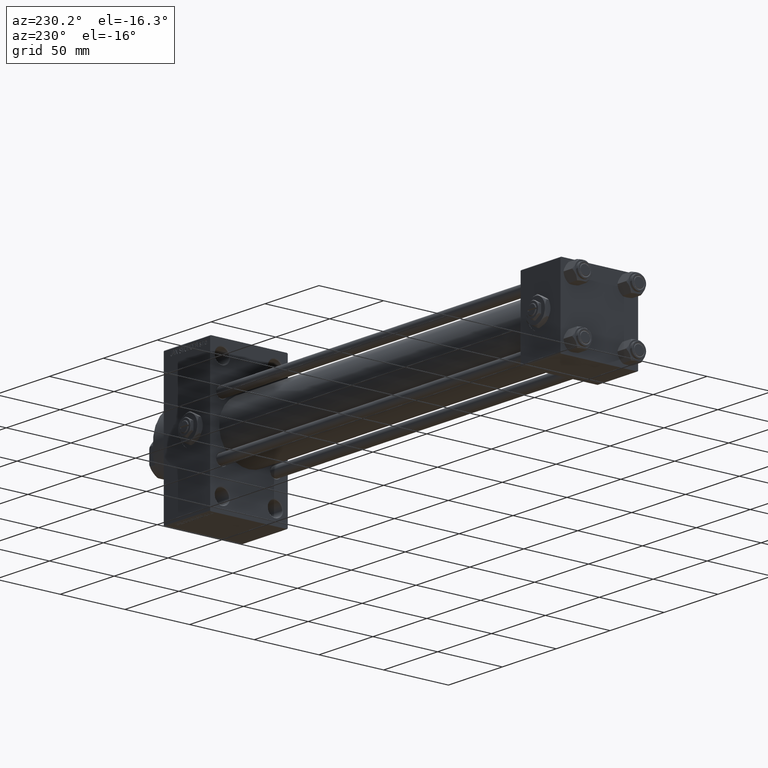
[diagram: clean part render]
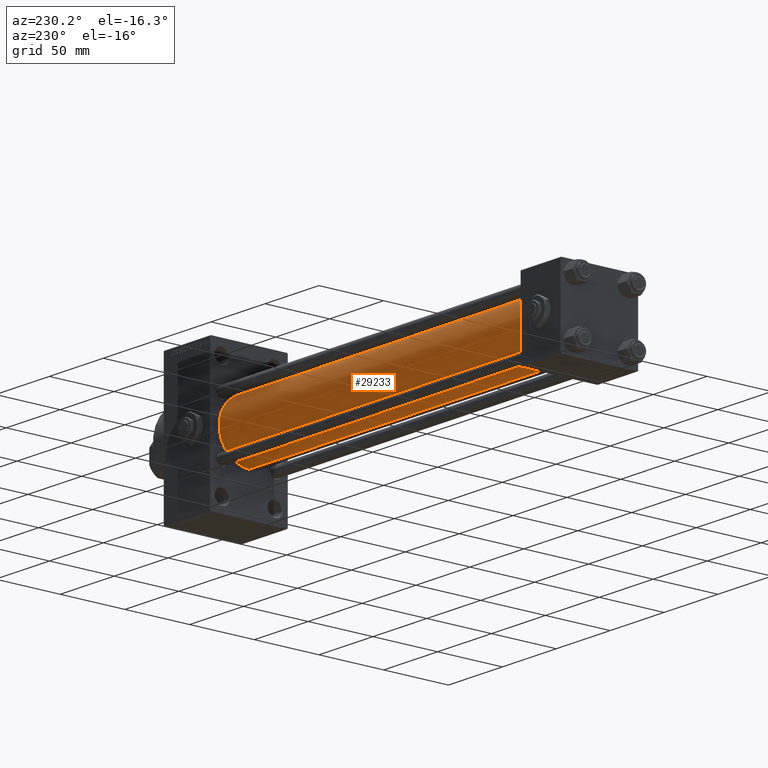
[diagram: same view with one face highlighted and labeled with its STEP entity id]
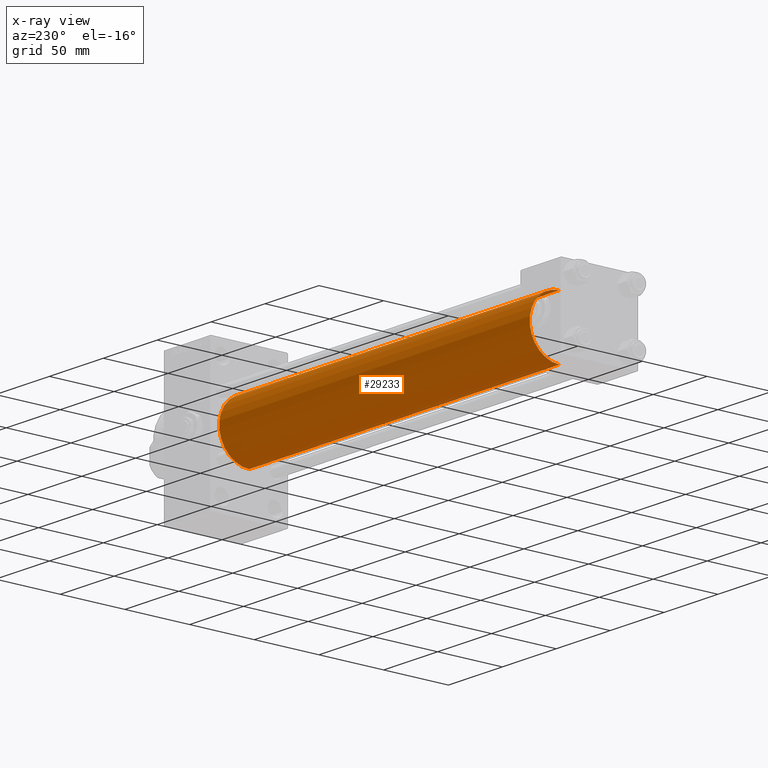
[diagram: x-ray of the same camera — body ghosted, the highlighted face saturated]
A machine part, auxiliary view. The second image highlights one B-rep face of the part: STEP entity #29233.
The next image is the same camera in x-ray: the body ghosted, the highlighted face saturated — about 0% of this face is hidden behind the body in this view.
In plain terms, the highlighted cylindrical surface (partial cylindrical patch) has radius 23 mm, axis along (-1, -0, -0).
Its self-contained STEP definition (entity closure, byte-faithful):
#2254 = DIRECTION ( 'NONE',  ( 1.000000000000000000, -0.000000000000000000, 0.000000000000000000 ) ) ;
#2551 = DIRECTION ( 'NONE',  ( 0.000000000000000000, 0.000000000000000000, 1.000000000000000000 ) ) ;
#3525 = CARTESIAN_POINT ( 'NONE',  ( 324.9999999999999432, -2.602085213965210642E-15, 0.000000000000000000 ) ) ;
#5662 = VECTOR ( 'NONE', #38334, 1000.000000000000000 ) ;
#7294 = DIRECTION ( 'NONE',  ( -1.000000000000000000, -0.000000000000000000, -0.000000000000000000 ) ) ;
#7400 = VERTEX_POINT ( 'NONE', #24897 ) ;
#8040 = CARTESIAN_POINT ( 'NONE',  ( 324.9999999999999432, -2.602085213965210642E-15, 0.000000000000000000 ) ) ;
#8779 = DIRECTION ( 'NONE',  ( 1.000000000000000000, 0.000000000000000000, 0.000000000000000000 ) ) ;
#9206 = VERTEX_POINT ( 'NONE', #46667 ) ;
#10222 = EDGE_CURVE ( 'NONE', #7400, #9206, #31038, .T. ) ;
#10761 = AXIS2_PLACEMENT_3D ( 'NONE', #8040, #8779, #16051 ) ;
#11295 = FACE_OUTER_BOUND ( 'NONE', #49630, .T. ) ;
#12385 = AXIS2_PLACEMENT_3D ( 'NONE', #3525, #7294, #2551 ) ;
#16042 = VECTOR ( 'NONE', #31309, 1000.000000000000000 ) ;
#16051 = DIRECTION ( 'NONE',  ( 0.000000000000000000, 0.000000000000000000, -1.000000000000000000 ) ) ;
#17581 = ORIENTED_EDGE ( 'NONE', *, *, #48847, .T. ) ;
#20391 = EDGE_CURVE ( 'NONE', #38436, #9206, #46064, .T. ) ;
#21838 = ORIENTED_EDGE ( 'NONE', *, *, #20391, .T. ) ;
#24897 = CARTESIAN_POINT ( 'NONE',  ( 324.9999999999999432, -2.602085213965210642E-15, 23.00000000000000000 ) ) ;
#27296 = CARTESIAN_POINT ( 'NONE',  ( 324.9999999999999432, 2.146024240737016609E-16, -23.00000000000000000 ) ) ;
#28731 = VERTEX_POINT ( 'NONE', #44234 ) ;
#29233 = ADVANCED_FACE ( 'NONE', ( #11295 ), #41633, .T. ) ;
#29962 = EDGE_CURVE ( 'NONE', #28731, #7400, #37207, .T. ) ;
#31038 = LINE ( 'NONE', #45366, #5662 ) ;
#31309 = DIRECTION ( 'NONE',  ( -1.000000000000000000, -0.000000000000000000, -0.000000000000000000 ) ) ;
#34012 = AXIS2_PLACEMENT_3D ( 'NONE', #44125, #2254, #37079 ) ;
#35457 = CARTESIAN_POINT ( 'NONE',  ( 36.99999999999997868, 2.146024240737016609E-16, -23.00000000000000000 ) ) ;
#36274 = ORIENTED_EDGE ( 'NONE', *, *, #29962, .F. ) ;
#37079 = DIRECTION ( 'NONE',  ( 0.000000000000000000, 0.000000000000000000, 1.000000000000000000 ) ) ;
#37207 = CIRCLE ( 'NONE', #10761, 23.00000000000000000 ) ;
#38334 = DIRECTION ( 'NONE',  ( -1.000000000000000000, -0.000000000000000000, -0.000000000000000000 ) ) ;
#38436 = VERTEX_POINT ( 'NONE', #35457 ) ;
#41633 = CYLINDRICAL_SURFACE ( 'NONE', #12385, 23.00000000000000000 ) ;
#43100 = LINE ( 'NONE', #27296, #16042 ) ;
#44125 = CARTESIAN_POINT ( 'NONE',  ( 36.99999999999997868, -2.602085213965210642E-15, 0.000000000000000000 ) ) ;
#44234 = CARTESIAN_POINT ( 'NONE',  ( 324.9999999999999432, 2.146024240737016609E-16, -23.00000000000000000 ) ) ;
#45366 = CARTESIAN_POINT ( 'NONE',  ( 324.9999999999999432, -2.602085213965210642E-15, 23.00000000000000000 ) ) ;
#46064 = CIRCLE ( 'NONE', #34012, 23.00000000000000000 ) ;
#46659 = ORIENTED_EDGE ( 'NONE', *, *, #10222, .F. ) ;
#46667 = CARTESIAN_POINT ( 'NONE',  ( 36.99999999999997868, -2.602085213965210642E-15, 23.00000000000000000 ) ) ;
#48847 = EDGE_CURVE ( 'NONE', #28731, #38436, #43100, .T. ) ;
#49630 = EDGE_LOOP ( 'NONE', ( #36274, #17581, #21838, #46659 ) ) ;